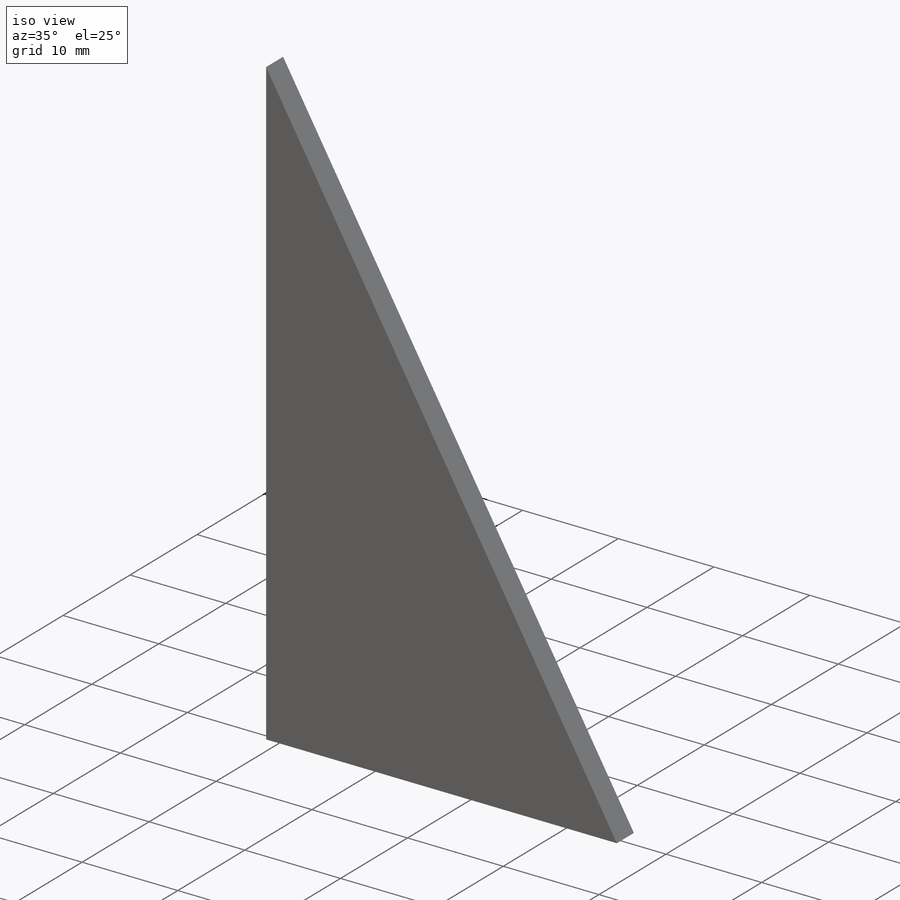
[diagram: iso view]
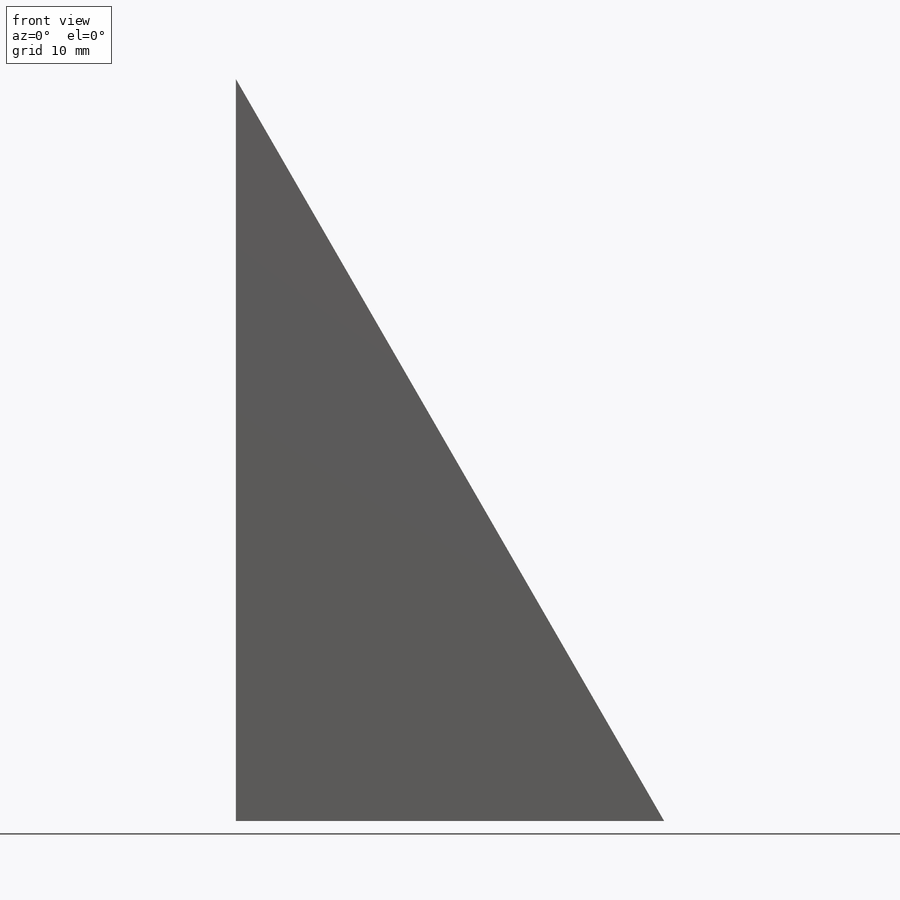
[diagram: front view]
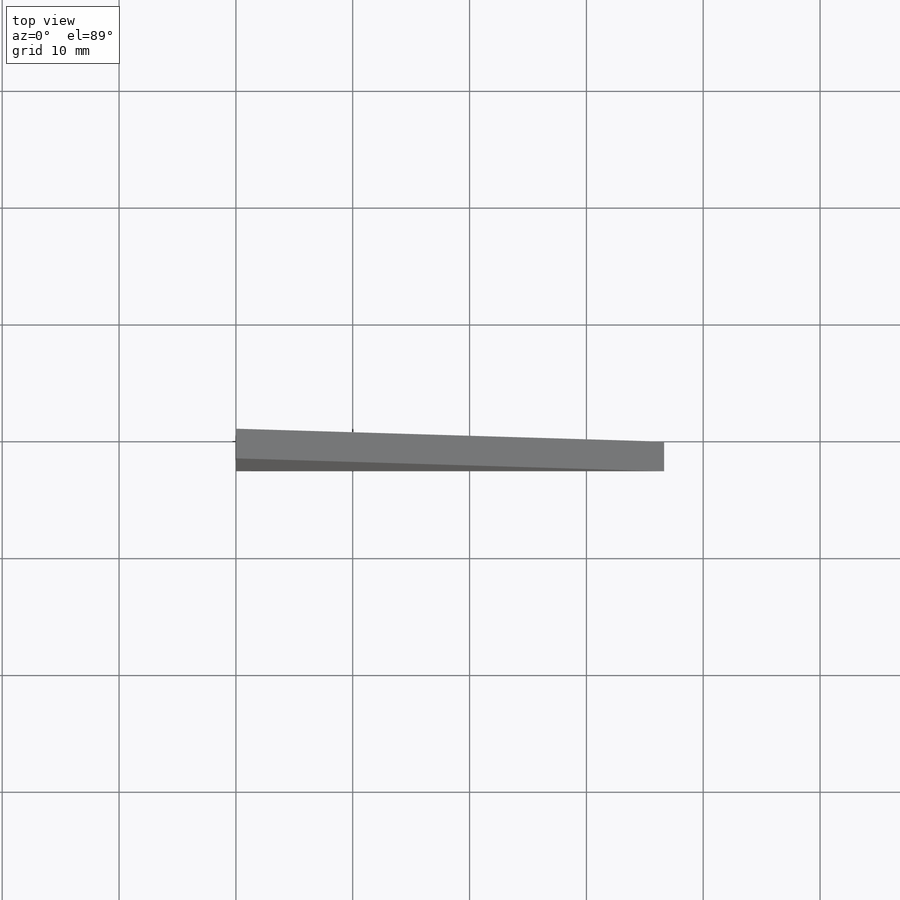
[diagram: top view]
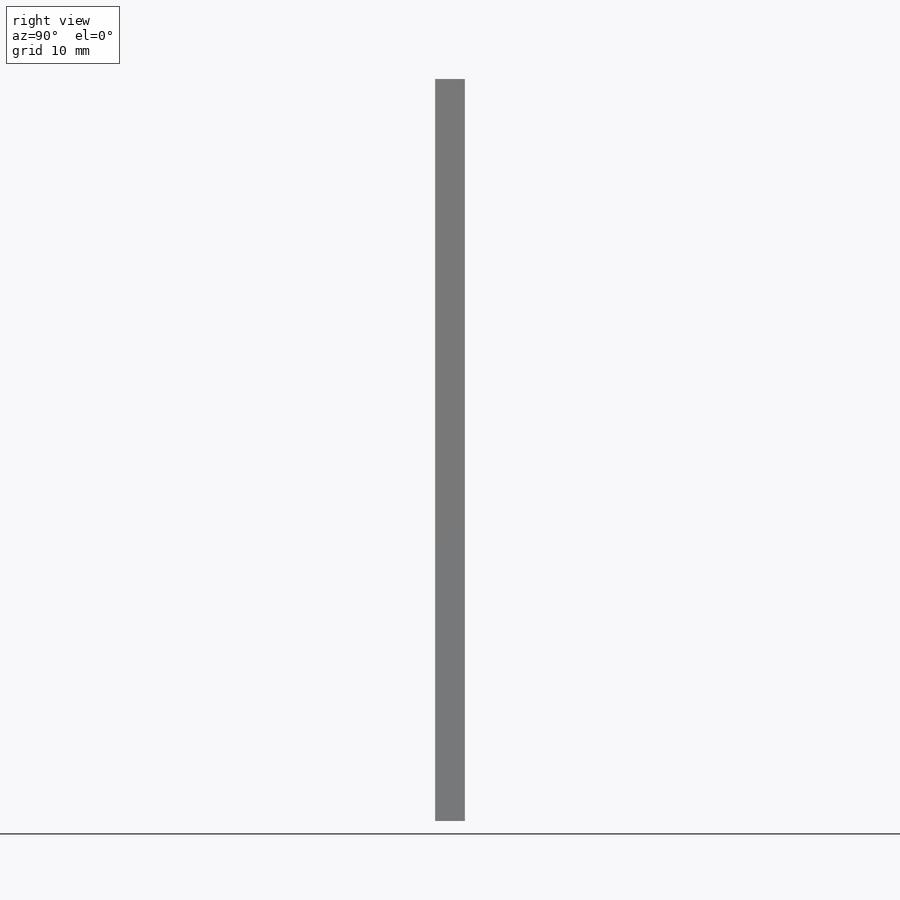
[diagram: right view]
SOLIDWORKS PART (.sldprt)
format: sldprt  version: not decoded by parser v0  size: 326,144 bytes
history: native  units: mm
features: sketch x4, cut_extrude x2, material x1, extrude x1, fillet x1 (+12 scaffold rows collapsed)
feature tree (21):
  scaffold x12  (default folders/planes/origin — collapsed)
  material  "Thornel Mat VMA"
  sketch  "Sketch1"  dims[D1=36.6522mm]
  extrude  "Extrude1"  Depth=2.54mm
  sketch  "Sketch2"
  sketch  "Sketch4"  dims[D1=10.668mm]
  cut_extrude  "Extrude3"  Depth=2.032mm
  sketch  "Sketch3"  dims[D1=~16.775938mm]
  cut_extrude  "Extrude2"  Depth=0.9144mm
  fillet  "Fillet1"  Radius=1.5875mm
decode coverage: 7 of 8 modeling features carry decoded parameters
note: ~ marks probable driven/reference dimensions
note: suppression state not decoded; provenance and decode notes live in map.json
